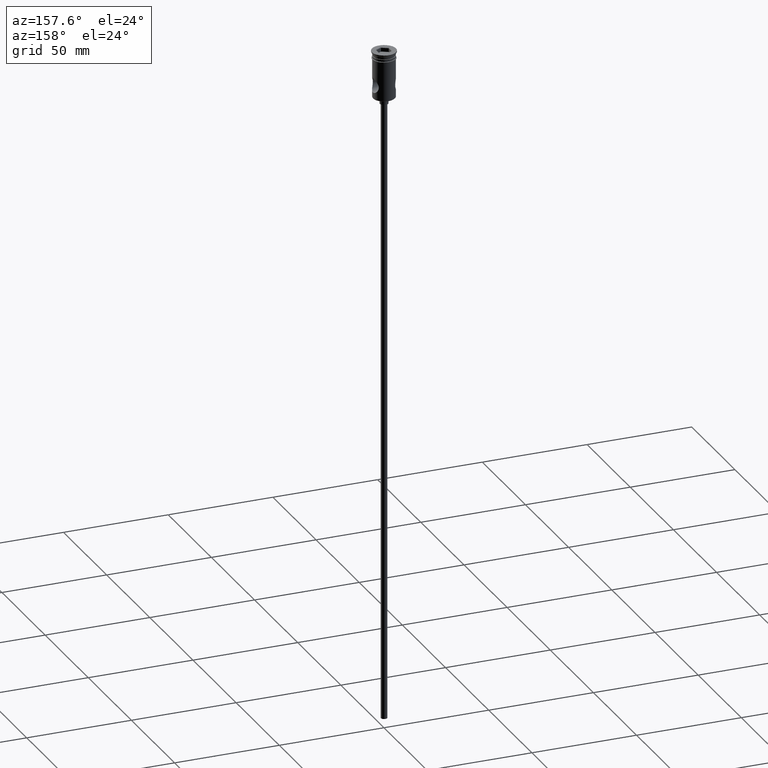
[diagram: clean part render]
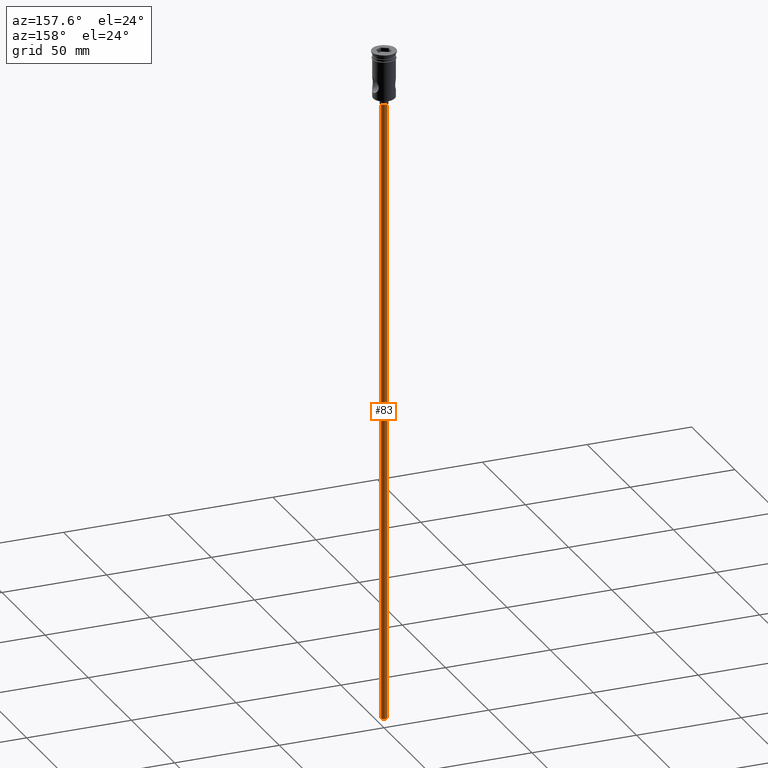
[diagram: same view with one face highlighted and labeled with its STEP entity id]
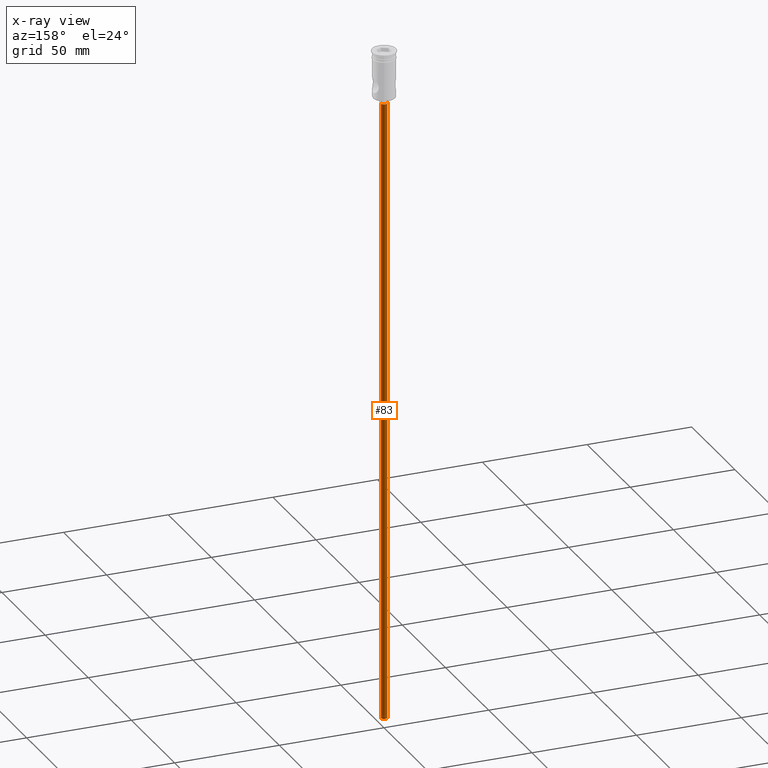
[diagram: x-ray of the same camera — body ghosted, the highlighted face saturated]
A machine part, auxiliary view. The second image highlights one B-rep face of the part: STEP entity #83.
The next image is the same camera in x-ray: the body ghosted, the highlighted face saturated — about 0% of this face is hidden behind the body in this view.
In plain terms, the highlighted cylindrical surface (edge-blend (fillet) strip) has radius 1.5 mm, axis along (-0, -0, 1).
Its self-contained STEP definition (entity closure, byte-faithful):
#2 = CARTESIAN_POINT ( 'NONE',  ( 0.000000000000000000, 0.000000000000000000, -322.5000000000000000 ) ) ;
#32 = EDGE_CURVE ( 'NONE', #981, #147, #776, .T. ) ;
#48 = DIRECTION ( 'NONE',  ( -0.000000000000000000, -0.000000000000000000, 1.000000000000000000 ) ) ;
#83 = ADVANCED_FACE ( 'NONE', ( #1348 ), #1440, .T. ) ;
#119 = EDGE_CURVE ( 'NONE', #981, #1055, #1367, .T. ) ;
#147 = VERTEX_POINT ( 'NONE', #921 ) ;
#221 = DIRECTION ( 'NONE',  ( -0.000000000000000000, -0.000000000000000000, 1.000000000000000000 ) ) ;
#243 = EDGE_CURVE ( 'NONE', #1055, #813, #1053, .T. ) ;
#348 = DIRECTION ( 'NONE',  ( -1.000000000000000000, 0.000000000000000000, 0.000000000000000000 ) ) ;
#456 = AXIS2_PLACEMENT_3D ( 'NONE', #894, #793, #348 ) ;
#498 = VECTOR ( 'NONE', #1014, 1000.000000000000000 ) ;
#776 = LINE ( 'NONE', #782, #498 ) ;
#782 = CARTESIAN_POINT ( 'NONE',  ( -1.500000000000000222, 1.836970198721030181E-16, -322.5000000000000000 ) ) ;
#793 = DIRECTION ( 'NONE',  ( 0.000000000000000000, 0.000000000000000000, -1.000000000000000000 ) ) ;
#813 = VERTEX_POINT ( 'NONE', #1144 ) ;
#820 = ORIENTED_EDGE ( 'NONE', *, *, #1281, .T. ) ;
#829 = AXIS2_PLACEMENT_3D ( 'NONE', #880, #221, #1339 ) ;
#880 = CARTESIAN_POINT ( 'NONE',  ( 0.000000000000000000, 0.000000000000000000, -322.5000000000000000 ) ) ;
#894 = CARTESIAN_POINT ( 'NONE',  ( 0.000000000000000000, 0.000000000000000000, -25.50000000000000000 ) ) ;
#921 = CARTESIAN_POINT ( 'NONE',  ( -1.500000000000000222, 1.836970198721030181E-16, -25.50000000000000000 ) ) ;
#926 = VECTOR ( 'NONE', #48, 1000.000000000000000 ) ;
#981 = VERTEX_POINT ( 'NONE', #1038 ) ;
#1000 = DIRECTION ( 'NONE',  ( 0.000000000000000000, 0.000000000000000000, -1.000000000000000000 ) ) ;
#1014 = DIRECTION ( 'NONE',  ( -0.000000000000000000, -0.000000000000000000, 1.000000000000000000 ) ) ;
#1038 = CARTESIAN_POINT ( 'NONE',  ( -1.500000000000000222, 1.836970198721030181E-16, -322.5000000000000000 ) ) ;
#1053 = LINE ( 'NONE', #1152, #926 ) ;
#1055 = VERTEX_POINT ( 'NONE', #1211 ) ;
#1114 = ORIENTED_EDGE ( 'NONE', *, *, #32, .T. ) ;
#1144 = CARTESIAN_POINT ( 'NONE',  ( 1.500000000000000222, 0.000000000000000000, -25.50000000000000000 ) ) ;
#1152 = CARTESIAN_POINT ( 'NONE',  ( 1.500000000000000222, 0.000000000000000000, -322.5000000000000000 ) ) ;
#1162 = AXIS2_PLACEMENT_3D ( 'NONE', #2, #1000, #1273 ) ;
#1168 = EDGE_LOOP ( 'NONE', ( #1411, #1114, #820, #1292 ) ) ;
#1211 = CARTESIAN_POINT ( 'NONE',  ( 1.500000000000000222, 0.000000000000000000, -322.5000000000000000 ) ) ;
#1273 = DIRECTION ( 'NONE',  ( -1.000000000000000000, 0.000000000000000000, 0.000000000000000000 ) ) ;
#1281 = EDGE_CURVE ( 'NONE', #147, #813, #1372, .T. ) ;
#1292 = ORIENTED_EDGE ( 'NONE', *, *, #243, .F. ) ;
#1339 = DIRECTION ( 'NONE',  ( 1.000000000000000000, 0.000000000000000000, 0.000000000000000000 ) ) ;
#1348 = FACE_OUTER_BOUND ( 'NONE', #1168, .T. ) ;
#1367 = CIRCLE ( 'NONE', #1162, 1.500000000000000222 ) ;
#1372 = CIRCLE ( 'NONE', #456, 1.500000000000000222 ) ;
#1411 = ORIENTED_EDGE ( 'NONE', *, *, #119, .F. ) ;
#1440 = CYLINDRICAL_SURFACE ( 'NONE', #829, 1.500000000000000222 ) ;